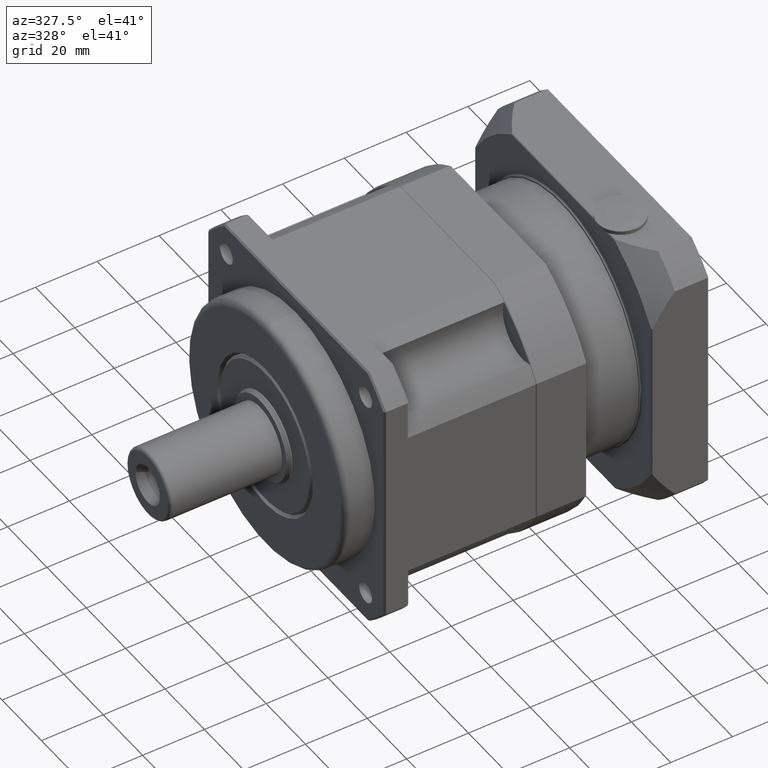
[diagram: clean part render]
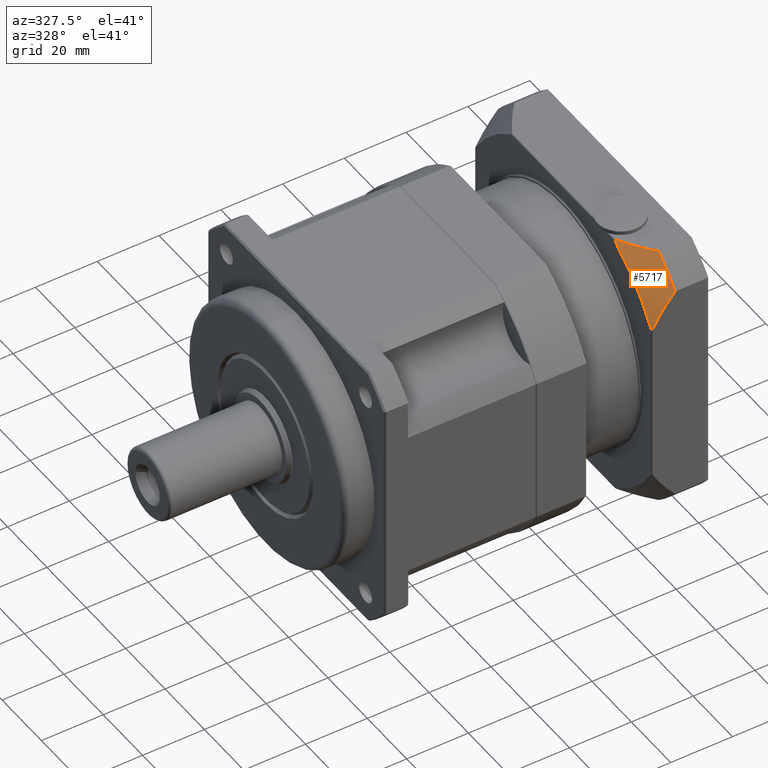
[diagram: same view with one face highlighted and labeled with its STEP entity id]
A machine part, auxiliary view. The second image highlights one B-rep face of the part: STEP entity #5717.
In plain terms, the highlighted spherical surface has radius 71 mm.
Its self-contained STEP definition (entity closure, byte-faithful):
#28=B_SPLINE_CURVE_WITH_KNOTS('',3,(#9014,#9015,#9016,#9017,#9018,#9019,
#9020,#9021,#9022,#9023,#9024,#9025,#9026,#9027,#9028,#9029,#9030,#9031,
#9032),.UNSPECIFIED.,.F.,.F.,(4,2,2,2,3,2,2,2,4),(-0.0516311688356993,-0.0359456465529061,
-0.0132459338235214,-0.00662296691176067,0.,0.0101172394984024,0.0202344789968047,
0.0404689579936095,0.0570529004931128),.UNSPECIFIED.);
#29=B_SPLINE_CURVE_WITH_KNOTS('',3,(#9035,#9036,#9037,#9038,#9039,#9040,
#9041,#9042,#9043,#9044,#9045,#9046,#9047,#9048,#9049,#9050,#9051,#9052,
#9053),.UNSPECIFIED.,.F.,.F.,(4,2,2,2,3,2,2,2,4),(-0.0570529004931093,-0.0404689579936085,
-0.0202344789968042,-0.010117239498402,0.,0.00662296691176184,0.0132459338235237,
0.0359456465529038,0.0516311688356973),.UNSPECIFIED.);
#89=SPHERICAL_SURFACE('',#6193,71.);
#1233=FACE_OUTER_BOUND('',#1672,.T.);
#1672=EDGE_LOOP('',(#3981,#3982,#3983,#3984,#3985,#3986));
#2181=CIRCLE('',#6194,54.9181208709839);
#2182=CIRCLE('',#6195,58.);
#2183=CIRCLE('',#6196,54.9181208709839);
#2184=CIRCLE('',#6197,51.8531580523308);
#2569=VERTEX_POINT('',#9006);
#2570=VERTEX_POINT('',#9007);
#2571=VERTEX_POINT('',#9009);
#2572=VERTEX_POINT('',#9011);
#2573=VERTEX_POINT('',#9013);
#2574=VERTEX_POINT('',#9033);
#3126=EDGE_CURVE('',#2569,#2570,#2181,.T.);
#3127=EDGE_CURVE('',#2571,#2569,#2182,.T.);
#3128=EDGE_CURVE('',#2572,#2571,#2183,.T.);
#3129=EDGE_CURVE('',#2573,#2572,#28,.T.);
#3130=EDGE_CURVE('',#2574,#2573,#2184,.T.);
#3131=EDGE_CURVE('',#2570,#2574,#29,.T.);
#3981=ORIENTED_EDGE('',*,*,#3126,.F.);
#3982=ORIENTED_EDGE('',*,*,#3127,.F.);
#3983=ORIENTED_EDGE('',*,*,#3128,.F.);
#3984=ORIENTED_EDGE('',*,*,#3129,.F.);
#3985=ORIENTED_EDGE('',*,*,#3130,.F.);
#3986=ORIENTED_EDGE('',*,*,#3131,.F.);
#5717=ADVANCED_FACE('',(#1233),#89,.T.);
#6193=AXIS2_PLACEMENT_3D('',#9005,#7129,#7130);
#6194=AXIS2_PLACEMENT_3D('',#9008,#7131,#7132);
#6195=AXIS2_PLACEMENT_3D('',#9010,#7133,#7134);
#6196=AXIS2_PLACEMENT_3D('',#9012,#7135,#7136);
#6197=AXIS2_PLACEMENT_3D('',#9034,#7137,#7138);
#7129=DIRECTION('center_axis',(-5.20397496613031E-15,6.00458649938113E-16,
-1.));
#7130=DIRECTION('ref_axis',(1.,1.50114662484528E-15,-5.27903229737258E-15));
#7131=DIRECTION('center_axis',(1.45660120077612E-15,-1.,-7.92166293983112E-16));
#7132=DIRECTION('ref_axis',(5.27608953374165E-15,-7.92166293983104E-16,
1.));
#7133=DIRECTION('center_axis',(1.,1.45660120077612E-15,-5.27608953374165E-15));
#7134=DIRECTION('ref_axis',(-5.27608953374165E-15,5.94793311827521E-16,
-1.));
#7135=DIRECTION('center_axis',(5.27608953374165E-15,-7.92166293983104E-16,
1.));
#7136=DIRECTION('ref_axis',(-1.45660120077612E-15,1.,7.92166293983112E-16));
#7137=DIRECTION('center_axis',(-1.,-1.45660120077612E-15,5.27608953374165E-15));
#7138=DIRECTION('ref_axis',(5.27608953374165E-15,-5.94793311827521E-16,
1.));
#9005=CARTESIAN_POINT('Origin',(74.9702896556817,-32.3933275789246,10.8503877548306));
#9006=CARTESIAN_POINT('',(34.0190991967955,-77.3933275789247,47.4427366818948));
#9007=CARTESIAN_POINT('',(26.9702896556819,-77.3933275789247,37.5337158830835));
#9008=CARTESIAN_POINT('Origin',(74.9702896556818,-77.3933275789246,10.8503877548306));
#9009=CARTESIAN_POINT('',(34.0190991967955,-68.9856765059887,55.8503877548308));
#9010=CARTESIAN_POINT('Origin',(34.0190991967952,-32.3933275789247,10.8503877548309));
#9011=CARTESIAN_POINT('',(26.970289655682,-59.0766557071774,55.8503877548309));
#9012=CARTESIAN_POINT('Origin',(74.970289655682,-32.3933275789246,55.8503877548306));
#9013=CARTESIAN_POINT('',(26.470289655682,-59.010990887337,55.3503877548309));
#9014=CARTESIAN_POINT('Ctrl Pts',(26.470289655682,-59.010990887337,55.3503877548309));
#9015=CARTESIAN_POINT('Ctrl Pts',(26.470289655682,-58.9646847501556,55.3780857586199));
#9016=CARTESIAN_POINT('Ctrl Pts',(26.4725270025352,-58.9201392213545,55.4070709286836));
#9017=CARTESIAN_POINT('Ctrl Pts',(26.4859402063067,-58.8176762209158,55.4825217237204));
#9018=CARTESIAN_POINT('Ctrl Pts',(26.5034339530056,-58.7505879420416,55.541152457914));
#9019=CARTESIAN_POINT('Ctrl Pts',(26.5456704486169,-58.7026031045461,55.6150921919432));
#9020=CARTESIAN_POINT('Ctrl Pts',(26.557687485843,-58.6929590439325,55.633754057698));
#9021=CARTESIAN_POINT('Ctrl Pts',(26.5854431776854,-58.6815938491855,55.6704083848091));
#9022=CARTESIAN_POINT('Ctrl Pts',(26.6011945020388,-58.6798989544472,55.6883993823743));
#9023=CARTESIAN_POINT('Ctrl Pts',(26.6167362650887,-58.6819681436295,55.7039411454242));
#9024=CARTESIAN_POINT('Ctrl Pts',(26.6404778511631,-58.6851290355385,55.7276827314985));
#9025=CARTESIAN_POINT('Ctrl Pts',(26.6641296158075,-58.6960752407934,55.7467286003861));
#9026=CARTESIAN_POINT('Ctrl Pts',(26.7110716975771,-58.7273287287949,55.7788789290617));
#9027=CARTESIAN_POINT('Ctrl Pts',(26.7343542112006,-58.7476907920746,55.7919414927182));
#9028=CARTESIAN_POINT('Ctrl Pts',(26.8027483492446,-58.8177768947379,55.8241708584295));
#9029=CARTESIAN_POINT('Ctrl Pts',(26.8460836320394,-58.8762363765667,55.8361731261902));
#9030=CARTESIAN_POINT('Ctrl Pts',(26.9134714938062,-58.978112279119,55.848104435324));
#9031=CARTESIAN_POINT('Ctrl Pts',(26.9424230305179,-59.0265271024752,55.8503877548309));
#9032=CARTESIAN_POINT('Ctrl Pts',(26.970289655682,-59.0766557071774,55.8503877548309));
#9033=CARTESIAN_POINT('',(26.4702896556819,-76.8933275789247,37.4680510632432));
#9034=CARTESIAN_POINT('Origin',(26.4702896556817,-32.3933275789247,10.8503877548309));
#9035=CARTESIAN_POINT('Ctrl Pts',(26.9702896556819,-77.3933275789247,37.5337158830835));
#9036=CARTESIAN_POINT('Ctrl Pts',(26.9424230305178,-77.3933275789247,37.4835872783814));
#9037=CARTESIAN_POINT('Ctrl Pts',(26.9134714938061,-77.3910442594178,37.4351724550252));
#9038=CARTESIAN_POINT('Ctrl Pts',(26.8460836320394,-77.379112950284,37.3332965524729));
#9039=CARTESIAN_POINT('Ctrl Pts',(26.8027483492446,-77.3671106825233,37.2748370706441));
#9040=CARTESIAN_POINT('Ctrl Pts',(26.7343542112006,-77.334881316812,37.2047509679808));
#9041=CARTESIAN_POINT('Ctrl Pts',(26.7110716975771,-77.3218187531555,37.1843889047011));
#9042=CARTESIAN_POINT('Ctrl Pts',(26.6641296158075,-77.28966842448,37.1531354166995));
#9043=CARTESIAN_POINT('Ctrl Pts',(26.640477851163,-77.2706225555923,37.1421892114447));
#9044=CARTESIAN_POINT('Ctrl Pts',(26.6167362650886,-77.246880969518,37.1390283195357));
#9045=CARTESIAN_POINT('Ctrl Pts',(26.6011945020388,-77.2313392064681,37.1369591303534));
#9046=CARTESIAN_POINT('Ctrl Pts',(26.5854431776853,-77.2133482089029,37.1386540250917));
#9047=CARTESIAN_POINT('Ctrl Pts',(26.5576874858429,-77.1766938817918,37.1500192198387));
#9048=CARTESIAN_POINT('Ctrl Pts',(26.5456704486168,-77.158032016037,37.1596632804523));
#9049=CARTESIAN_POINT('Ctrl Pts',(26.5034339530055,-77.0840922820078,37.2076481179479));
#9050=CARTESIAN_POINT('Ctrl Pts',(26.4859402063066,-77.0254615478142,37.2747363968219));
#9051=CARTESIAN_POINT('Ctrl Pts',(26.4725270025351,-76.9500107527774,37.3771993972606));
#9052=CARTESIAN_POINT('Ctrl Pts',(26.4702896556819,-76.9210255827137,37.4217449260617));
#9053=CARTESIAN_POINT('Ctrl Pts',(26.4702896556819,-76.8933275789247,37.4680510632432));